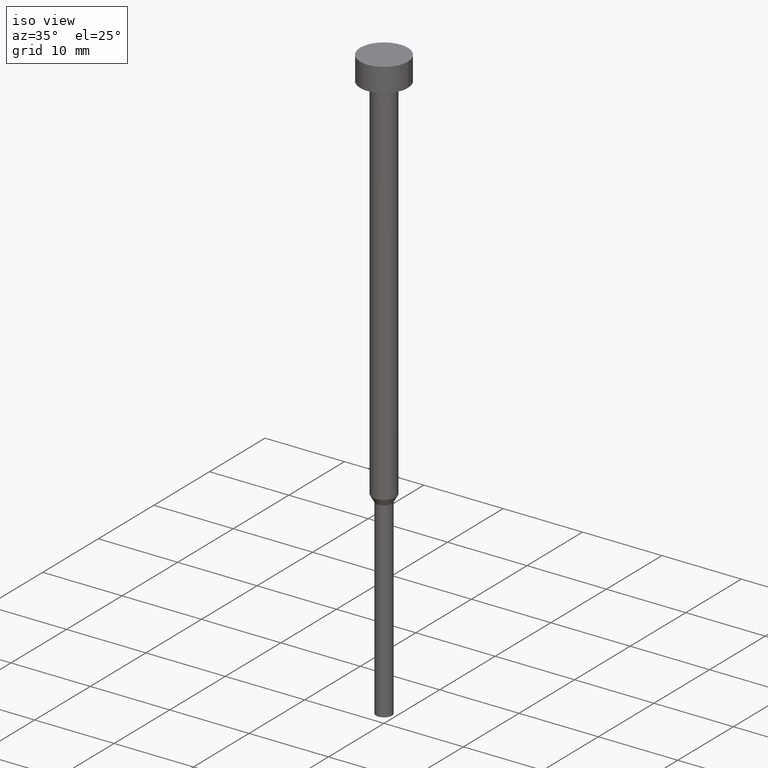
[diagram: clean part render]
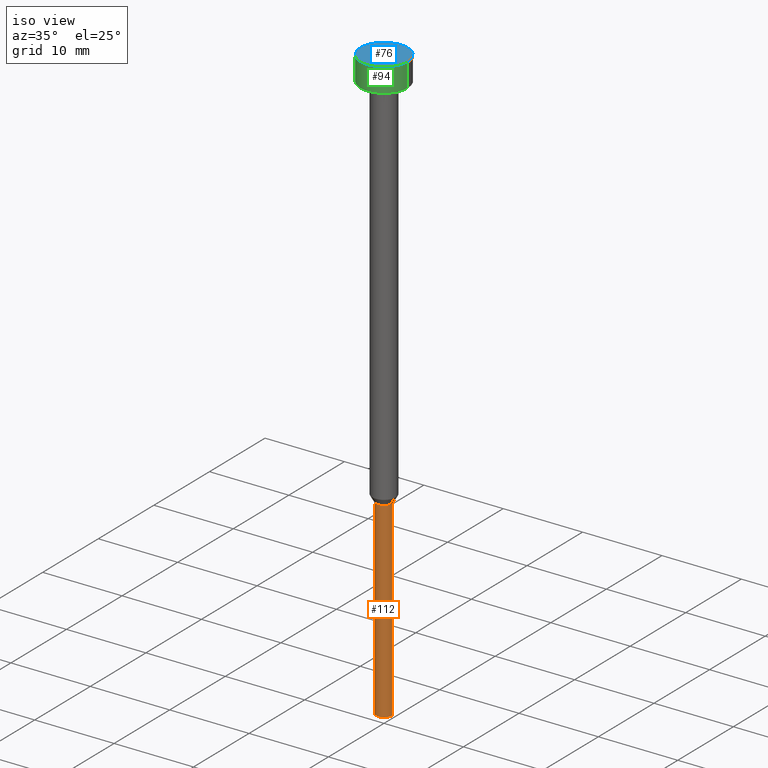
[diagram: same view with three faces highlighted in distinct colors, each labeled with its STEP entity id]
A machine part, iso view with three faces highlighted in distinct colors.
Their STEP definitions:

[orange] entity #112 — the highlighted cylindrical surface (edge-blend (fillet) strip) has radius 1 mm, axis along (-0, -0, 1).
#5 = CARTESIAN_POINT ( 'NONE',  ( 0.000000000000000000, 0.000000000000000000, -75.00000000000000000 ) ) ;
#32 = VERTEX_POINT ( 'NONE', #97 ) ;
#40 = DIRECTION ( 'NONE',  ( -0.000000000000000000, -0.000000000000000000, 1.000000000000000000 ) ) ;
#41 = LINE ( 'NONE', #315, #167 ) ;
#43 = EDGE_CURVE ( 'NONE', #98, #32, #245, .T. ) ;
#53 = CARTESIAN_POINT ( 'NONE',  ( 0.000000000000000000, 0.000000000000000000, 0.000000000000000000 ) ) ;
#70 = EDGE_LOOP ( 'NONE', ( #213, #342, #107, #294 ) ) ;
#79 = CYLINDRICAL_SURFACE ( 'NONE', #175, 1.000000000000000000 ) ;
#81 = FACE_OUTER_BOUND ( 'NONE', #70, .T. ) ;
#90 = AXIS2_PLACEMENT_3D ( 'NONE', #5, #280, #309 ) ;
#95 = AXIS2_PLACEMENT_3D ( 'NONE', #96, #129, #182 ) ;
#96 = CARTESIAN_POINT ( 'NONE',  ( 0.000000000000000000, 0.000000000000000000, -50.86602540378444104 ) ) ;
#97 = CARTESIAN_POINT ( 'NONE',  ( -1.000000000000000000, 1.224646799147353207E-16, -50.86602540378444104 ) ) ;
#98 = VERTEX_POINT ( 'NONE', #263 ) ;
#106 = EDGE_CURVE ( 'NONE', #98, #352, #163, .T. ) ;
#107 = ORIENTED_EDGE ( 'NONE', *, *, #318, .T. ) ;
#112 = ADVANCED_FACE ( 'NONE', ( #81 ), #79, .T. ) ;
#113 = DIRECTION ( 'NONE',  ( -0.000000000000000000, -0.000000000000000000, 1.000000000000000000 ) ) ;
#129 = DIRECTION ( 'NONE',  ( -0.000000000000000000, -0.000000000000000000, 1.000000000000000000 ) ) ;
#163 = CIRCLE ( 'NONE', #90, 1.000000000000000000 ) ;
#167 = VECTOR ( 'NONE', #350, 1000.000000000000000 ) ;
#175 = AXIS2_PLACEMENT_3D ( 'NONE', #53, #113, #252 ) ;
#181 = VERTEX_POINT ( 'NONE', #203 ) ;
#182 = DIRECTION ( 'NONE',  ( 1.000000000000000000, 0.000000000000000000, 0.000000000000000000 ) ) ;
#203 = CARTESIAN_POINT ( 'NONE',  ( 1.000000000000000000, 0.000000000000000000, -50.86602540378444104 ) ) ;
#206 = EDGE_CURVE ( 'NONE', #32, #181, #261, .T. ) ;
#208 = CARTESIAN_POINT ( 'NONE',  ( -1.000000000000000000, 1.224646799147353207E-16, 0.000000000000000000 ) ) ;
#213 = ORIENTED_EDGE ( 'NONE', *, *, #43, .F. ) ;
#222 = VECTOR ( 'NONE', #40, 1000.000000000000000 ) ;
#245 = LINE ( 'NONE', #208, #222 ) ;
#252 = DIRECTION ( 'NONE',  ( 1.000000000000000000, 0.000000000000000000, 0.000000000000000000 ) ) ;
#261 = CIRCLE ( 'NONE', #95, 1.000000000000000000 ) ;
#263 = CARTESIAN_POINT ( 'NONE',  ( -1.000000000000000000, 1.224646799147353207E-16, -75.00000000000000000 ) ) ;
#280 = DIRECTION ( 'NONE',  ( -0.000000000000000000, -0.000000000000000000, 1.000000000000000000 ) ) ;
#294 = ORIENTED_EDGE ( 'NONE', *, *, #206, .F. ) ;
#309 = DIRECTION ( 'NONE',  ( 1.000000000000000000, 0.000000000000000000, 0.000000000000000000 ) ) ;
#315 = CARTESIAN_POINT ( 'NONE',  ( 1.000000000000000000, 0.000000000000000000, 0.000000000000000000 ) ) ;
#318 = EDGE_CURVE ( 'NONE', #352, #181, #41, .T. ) ;
#342 = ORIENTED_EDGE ( 'NONE', *, *, #106, .T. ) ;
#343 = CARTESIAN_POINT ( 'NONE',  ( 1.000000000000000000, 0.000000000000000000, -75.00000000000000000 ) ) ;
#350 = DIRECTION ( 'NONE',  ( -0.000000000000000000, -0.000000000000000000, 1.000000000000000000 ) ) ;
#352 = VERTEX_POINT ( 'NONE', #343 ) ;

[blue] entity #76 — the highlighted planar face has unit normal (0, -0, 1).
#12 = DIRECTION ( 'NONE',  ( 1.000000000000000000, 0.000000000000000000, 0.000000000000000000 ) ) ;
#27 = DIRECTION ( 'NONE',  ( 1.000000000000000000, 0.000000000000000000, 0.000000000000000000 ) ) ;
#36 = CARTESIAN_POINT ( 'NONE',  ( 3.000000000000000000, 0.000000000000000000, -3.673940397442059868E-16 ) ) ;
#45 = CARTESIAN_POINT ( 'NONE',  ( 0.000000000000000000, 0.000000000000000000, -1.836970198721029934E-16 ) ) ;
#52 = CIRCLE ( 'NONE', #271, 3.000000000000000000 ) ;
#62 = DIRECTION ( 'NONE',  ( 1.000000000000000000, 0.000000000000000000, 0.000000000000000000 ) ) ;
#68 = CARTESIAN_POINT ( 'NONE',  ( 0.000000000000000000, 0.000000000000000000, -3.673940397442059868E-16 ) ) ;
#76 = ADVANCED_FACE ( 'NONE', ( #166 ), #301, .T. ) ;
#114 = CARTESIAN_POINT ( 'NONE',  ( -3.000000000000000000, 3.673940397442059868E-16, -3.673940397442059868E-16 ) ) ;
#123 = AXIS2_PLACEMENT_3D ( 'NONE', #68, #240, #12 ) ;
#166 = FACE_OUTER_BOUND ( 'NONE', #336, .T. ) ;
#168 = VERTEX_POINT ( 'NONE', #114 ) ;
#189 = VERTEX_POINT ( 'NONE', #36 ) ;
#234 = CARTESIAN_POINT ( 'NONE',  ( 0.000000000000000000, 0.000000000000000000, -3.673940397442059868E-16 ) ) ;
#240 = DIRECTION ( 'NONE',  ( -0.000000000000000000, -0.000000000000000000, 1.000000000000000000 ) ) ;
#257 = EDGE_CURVE ( 'NONE', #168, #189, #305, .T. ) ;
#271 = AXIS2_PLACEMENT_3D ( 'NONE', #234, #317, #62 ) ;
#277 = AXIS2_PLACEMENT_3D ( 'NONE', #45, #351, #27 ) ;
#285 = ORIENTED_EDGE ( 'NONE', *, *, #328, .T. ) ;
#301 = PLANE ( 'NONE',  #277 ) ;
#305 = CIRCLE ( 'NONE', #123, 3.000000000000000000 ) ;
#317 = DIRECTION ( 'NONE',  ( -0.000000000000000000, -0.000000000000000000, 1.000000000000000000 ) ) ;
#326 = ORIENTED_EDGE ( 'NONE', *, *, #257, .T. ) ;
#328 = EDGE_CURVE ( 'NONE', #189, #168, #52, .T. ) ;
#336 = EDGE_LOOP ( 'NONE', ( #285, #326 ) ) ;
#351 = DIRECTION ( 'NONE',  ( 0.000000000000000000, -0.000000000000000000, 1.000000000000000000 ) ) ;

[green] entity #94 — the highlighted cylindrical surface (edge-blend (fillet) strip) has radius 3 mm, axis along (-0, -0, 1).
#3 = CYLINDRICAL_SURFACE ( 'NONE', #92, 3.000000000000000000 ) ;
#10 = CARTESIAN_POINT ( 'NONE',  ( 0.000000000000000000, 0.000000000000000000, 0.000000000000000000 ) ) ;
#12 = DIRECTION ( 'NONE',  ( 1.000000000000000000, 0.000000000000000000, 0.000000000000000000 ) ) ;
#22 = VECTOR ( 'NONE', #146, 1000.000000000000000 ) ;
#33 = CARTESIAN_POINT ( 'NONE',  ( 0.000000000000000000, 0.000000000000000000, -3.000000000000000444 ) ) ;
#36 = CARTESIAN_POINT ( 'NONE',  ( 3.000000000000000000, 0.000000000000000000, -3.673940397442059868E-16 ) ) ;
#37 = DIRECTION ( 'NONE',  ( 1.000000000000000000, 0.000000000000000000, 0.000000000000000000 ) ) ;
#68 = CARTESIAN_POINT ( 'NONE',  ( 0.000000000000000000, 0.000000000000000000, -3.673940397442059868E-16 ) ) ;
#82 = EDGE_LOOP ( 'NONE', ( #135, #228, #150, #253 ) ) ;
#85 = CARTESIAN_POINT ( 'NONE',  ( -3.000000000000000000, 3.673940397442059868E-16, 0.000000000000000000 ) ) ;
#92 = AXIS2_PLACEMENT_3D ( 'NONE', #10, #287, #37 ) ;
#93 = CARTESIAN_POINT ( 'NONE',  ( -3.000000000000000000, 3.673940397442059868E-16, -3.000000000000000444 ) ) ;
#94 = ADVANCED_FACE ( 'NONE', ( #199 ), #3, .T. ) ;
#114 = CARTESIAN_POINT ( 'NONE',  ( -3.000000000000000000, 3.673940397442059868E-16, -3.673940397442059868E-16 ) ) ;
#123 = AXIS2_PLACEMENT_3D ( 'NONE', #68, #240, #12 ) ;
#135 = ORIENTED_EDGE ( 'NONE', *, *, #160, .F. ) ;
#146 = DIRECTION ( 'NONE',  ( -0.000000000000000000, -0.000000000000000000, 1.000000000000000000 ) ) ;
#150 = ORIENTED_EDGE ( 'NONE', *, *, #247, .T. ) ;
#153 = CARTESIAN_POINT ( 'NONE',  ( 3.000000000000000000, 0.000000000000000000, 0.000000000000000000 ) ) ;
#156 = EDGE_CURVE ( 'NONE', #310, #255, #211, .T. ) ;
#160 = EDGE_CURVE ( 'NONE', #310, #168, #171, .T. ) ;
#168 = VERTEX_POINT ( 'NONE', #114 ) ;
#171 = LINE ( 'NONE', #85, #22 ) ;
#189 = VERTEX_POINT ( 'NONE', #36 ) ;
#199 = FACE_OUTER_BOUND ( 'NONE', #82, .T. ) ;
#211 = CIRCLE ( 'NONE', #278, 3.000000000000000000 ) ;
#228 = ORIENTED_EDGE ( 'NONE', *, *, #156, .T. ) ;
#237 = DIRECTION ( 'NONE',  ( -0.000000000000000000, -0.000000000000000000, 1.000000000000000000 ) ) ;
#240 = DIRECTION ( 'NONE',  ( -0.000000000000000000, -0.000000000000000000, 1.000000000000000000 ) ) ;
#244 = LINE ( 'NONE', #153, #314 ) ;
#247 = EDGE_CURVE ( 'NONE', #255, #189, #244, .T. ) ;
#253 = ORIENTED_EDGE ( 'NONE', *, *, #257, .F. ) ;
#255 = VERTEX_POINT ( 'NONE', #346 ) ;
#257 = EDGE_CURVE ( 'NONE', #168, #189, #305, .T. ) ;
#258 = DIRECTION ( 'NONE',  ( -0.000000000000000000, -0.000000000000000000, 1.000000000000000000 ) ) ;
#278 = AXIS2_PLACEMENT_3D ( 'NONE', #33, #258, #331 ) ;
#287 = DIRECTION ( 'NONE',  ( -0.000000000000000000, -0.000000000000000000, 1.000000000000000000 ) ) ;
#305 = CIRCLE ( 'NONE', #123, 3.000000000000000000 ) ;
#310 = VERTEX_POINT ( 'NONE', #93 ) ;
#314 = VECTOR ( 'NONE', #237, 1000.000000000000000 ) ;
#331 = DIRECTION ( 'NONE',  ( 1.000000000000000000, 0.000000000000000000, 0.000000000000000000 ) ) ;
#346 = CARTESIAN_POINT ( 'NONE',  ( 3.000000000000000000, 0.000000000000000000, -3.000000000000000444 ) ) ;